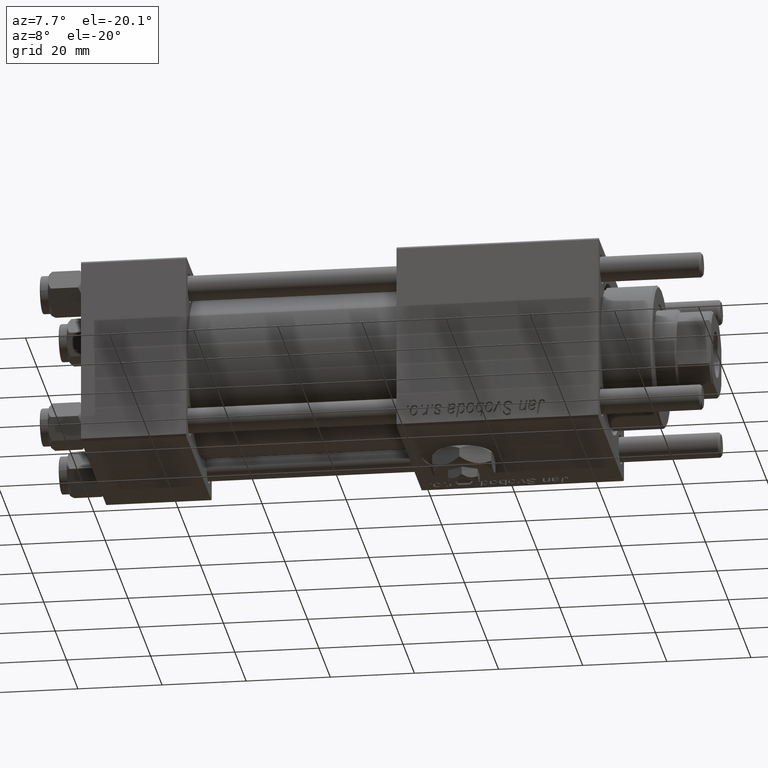
[diagram: clean part render]
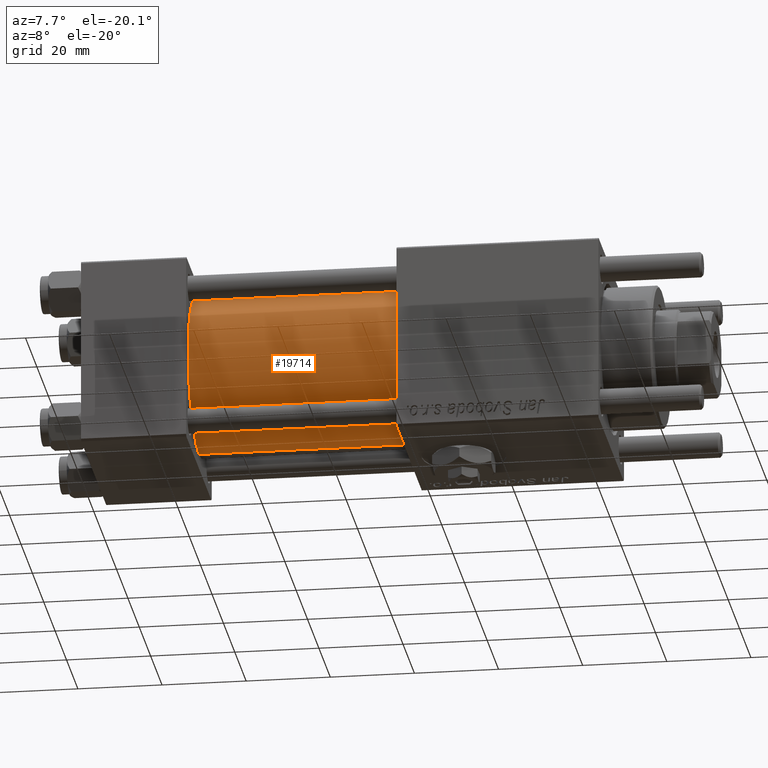
[diagram: same view with one face highlighted and labeled with its STEP entity id]
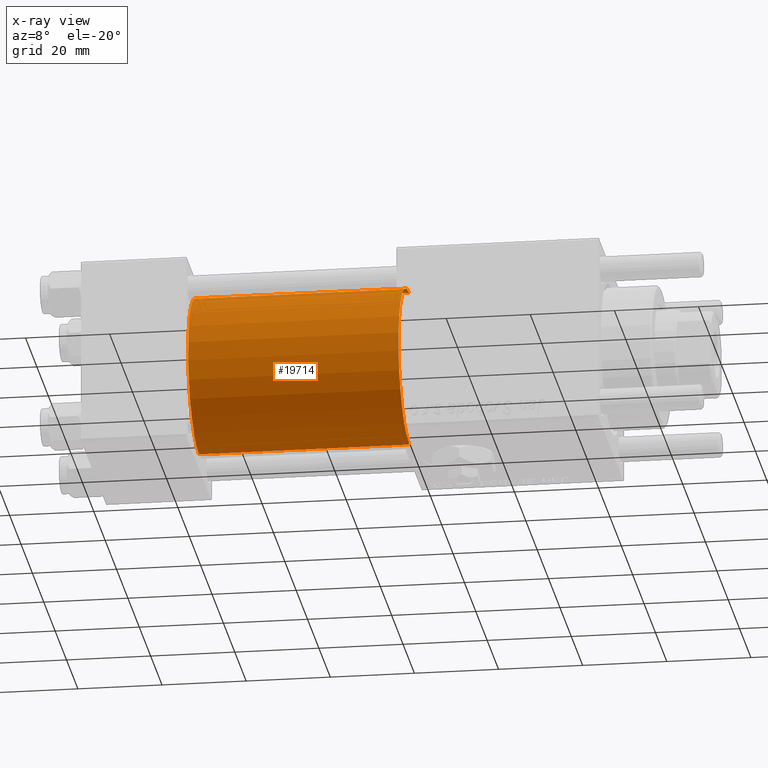
[diagram: x-ray of the same camera — body ghosted, the highlighted face saturated]
A machine part, auxiliary view. The second image highlights one B-rep face of the part: STEP entity #19714.
The next image is the same camera in x-ray: the body ghosted, the highlighted face saturated — about 0% of this face is hidden behind the body in this view.
In plain terms, the highlighted cylindrical surface (partial cylindrical patch) has radius 19 mm, axis along (-1, -0, -0).
Its self-contained STEP definition (entity closure, byte-faithful):
#1412 = CARTESIAN_POINT ( 'NONE',  ( 75.00000000000001421, -2.602085213965210642E-15, 19.00000000000000000 ) ) ;
#1563 = CARTESIAN_POINT ( 'NONE',  ( 25.00000000000000000, -2.602085213965210642E-15, 19.00000000000000000 ) ) ;
#3655 = DIRECTION ( 'NONE',  ( 0.000000000000000000, 0.000000000000000000, 1.000000000000000000 ) ) ;
#6944 = VERTEX_POINT ( 'NONE', #40934 ) ;
#8106 = VECTOR ( 'NONE', #41295, 1000.000000000000000 ) ;
#8391 = EDGE_LOOP ( 'NONE', ( #35256, #35941, #39665, #52525 ) ) ;
#9689 = DIRECTION ( 'NONE',  ( -1.000000000000000000, -0.000000000000000000, -0.000000000000000000 ) ) ;
#9843 = AXIS2_PLACEMENT_3D ( 'NONE', #31622, #54135, #35473 ) ;
#10008 = CIRCLE ( 'NONE', #40218, 19.00000000000000000 ) ;
#12664 = CARTESIAN_POINT ( 'NONE',  ( 75.00000000000001421, -2.602085213965210642E-15, 0.000000000000000000 ) ) ;
#18301 = DIRECTION ( 'NONE',  ( 1.000000000000000000, 0.000000000000000000, 0.000000000000000000 ) ) ;
#18473 = CARTESIAN_POINT ( 'NONE',  ( 75.00000000000001421, -2.752562955852396712E-16, -19.00000000000000000 ) ) ;
#19714 = ADVANCED_FACE ( 'NONE', ( #38757 ), #56812, .T. ) ;
#20922 = CARTESIAN_POINT ( 'NONE',  ( 25.00000000000000000, -2.752562955852396712E-16, -19.00000000000000000 ) ) ;
#25187 = CIRCLE ( 'NONE', #36567, 19.00000000000000000 ) ;
#26269 = VERTEX_POINT ( 'NONE', #20922 ) ;
#28234 = VECTOR ( 'NONE', #9689, 1000.000000000000000 ) ;
#30207 = EDGE_CURVE ( 'NONE', #6944, #36215, #25187, .T. ) ;
#30872 = DIRECTION ( 'NONE',  ( 1.000000000000000000, -0.000000000000000000, 0.000000000000000000 ) ) ;
#31622 = CARTESIAN_POINT ( 'NONE',  ( 75.00000000000001421, -2.602085213965210642E-15, 0.000000000000000000 ) ) ;
#35256 = ORIENTED_EDGE ( 'NONE', *, *, #46539, .F. ) ;
#35473 = DIRECTION ( 'NONE',  ( 0.000000000000000000, 0.000000000000000000, 1.000000000000000000 ) ) ;
#35559 = EDGE_CURVE ( 'NONE', #6944, #47849, #41668, .T. ) ;
#35941 = ORIENTED_EDGE ( 'NONE', *, *, #30207, .F. ) ;
#36215 = VERTEX_POINT ( 'NONE', #18473 ) ;
#36567 = AXIS2_PLACEMENT_3D ( 'NONE', #12664, #18301, #58279 ) ;
#38757 = FACE_OUTER_BOUND ( 'NONE', #8391, .T. ) ;
#39665 = ORIENTED_EDGE ( 'NONE', *, *, #35559, .T. ) ;
#40218 = AXIS2_PLACEMENT_3D ( 'NONE', #43332, #30872, #3655 ) ;
#40934 = CARTESIAN_POINT ( 'NONE',  ( 75.00000000000001421, -2.602085213965210642E-15, 19.00000000000000000 ) ) ;
#41295 = DIRECTION ( 'NONE',  ( -1.000000000000000000, -0.000000000000000000, -0.000000000000000000 ) ) ;
#41668 = LINE ( 'NONE', #1412, #28234 ) ;
#42463 = CARTESIAN_POINT ( 'NONE',  ( 75.00000000000001421, -2.752562955852396712E-16, -19.00000000000000000 ) ) ;
#43332 = CARTESIAN_POINT ( 'NONE',  ( 25.00000000000000000, -2.602085213965210642E-15, 0.000000000000000000 ) ) ;
#46539 = EDGE_CURVE ( 'NONE', #36215, #26269, #55506, .T. ) ;
#46711 = EDGE_CURVE ( 'NONE', #47849, #26269, #10008, .T. ) ;
#47849 = VERTEX_POINT ( 'NONE', #1563 ) ;
#52525 = ORIENTED_EDGE ( 'NONE', *, *, #46711, .T. ) ;
#54135 = DIRECTION ( 'NONE',  ( -1.000000000000000000, -0.000000000000000000, -0.000000000000000000 ) ) ;
#55506 = LINE ( 'NONE', #42463, #8106 ) ;
#56812 = CYLINDRICAL_SURFACE ( 'NONE', #9843, 19.00000000000000000 ) ;
#58279 = DIRECTION ( 'NONE',  ( 0.000000000000000000, 0.000000000000000000, -1.000000000000000000 ) ) ;